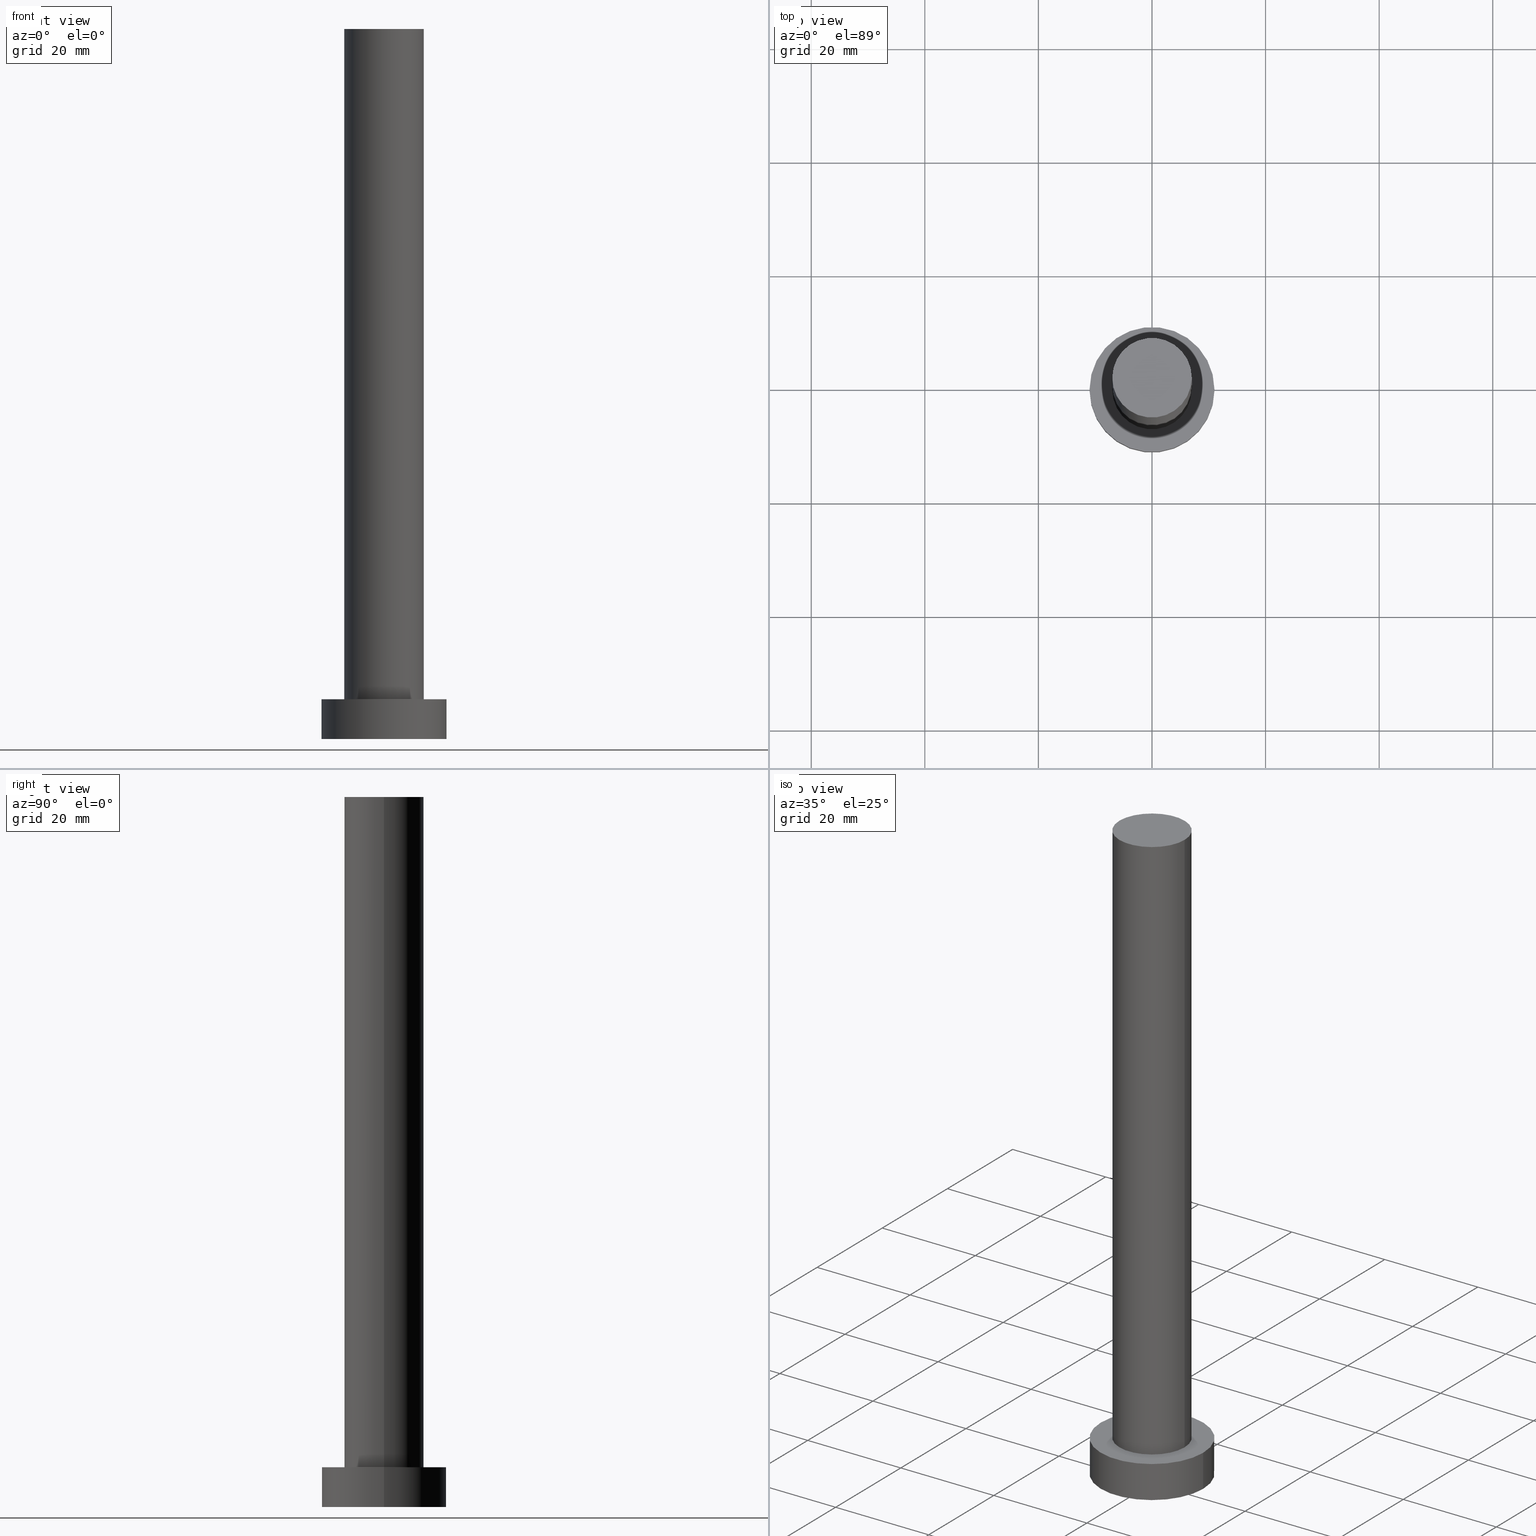
[diagram: canonical four-view strip — front | top / right | iso, engineering-drawing reading convention]
A machine part, canonical four-view strip (front | top / right | iso — engineering-drawing reading convention). The complete STEP part file that produces these views, byte-faithful:
ISO-10303-21;
HEADER;
FILE_DESCRIPTION (( 'STEP AP203' ),
    '1' );
FILE_NAME ('b90e.STEP',
    '2023-02-13T10:16:55',
    ( '' ),
    ( '' ),
    'SwSTEP 2.0',
    'SolidWorks 2019',
    '' );
FILE_SCHEMA (( 'CONFIG_CONTROL_DESIGN' ));
ENDSEC;

DATA;
#1 = DIRECTION ( 'NONE',  ( -0.000000000000000000, -0.000000000000000000, -1.000000000000000000 ) ) ;
#2 = APPROVAL_DATE_TIME ( #107, #102 ) ;
#3 = LOCAL_TIME ( 11, 16, 55.00000000000000000, #35 ) ;
#4 = CARTESIAN_POINT ( 'NONE',  ( 0.000000000000000000, 0.000000000000000000, 125.0000000000000000 ) ) ;
#5 = EDGE_LOOP ( 'NONE', ( #142, #148 ) ) ;
#6 = DIRECTION ( 'NONE',  ( 0.000000000000000000, 0.000000000000000000, 1.000000000000000000 ) ) ;
#7 = AXIS2_PLACEMENT_3D ( 'NONE', #230, #246, #52 ) ;
#8 = PRODUCT_RELATED_PRODUCT_CATEGORY ( 'detail', '', ( #132 ) ) ;
#9 = DIRECTION ( 'NONE',  ( 0.000000000000000000, 0.000000000000000000, 1.000000000000000000 ) ) ;
#10 = AXIS2_PLACEMENT_3D ( 'NONE', #200, #224, #27 ) ;
#11 = CARTESIAN_POINT ( 'NONE',  ( 0.000000000000000000, 0.000000000000000000, 125.0000000000000000 ) ) ;
#12 = DIRECTION ( 'NONE',  ( -0.000000000000000000, -0.000000000000000000, -1.000000000000000000 ) ) ;
#13 = CARTESIAN_POINT ( 'NONE',  ( -7.000000000000000888, 0.000000000000000000, 7.000000000000000000 ) ) ;
#14 = DIRECTION ( 'NONE',  ( 0.000000000000000000, 0.000000000000000000, 1.000000000000000000 ) ) ;
#15 = COORDINATED_UNIVERSAL_TIME_OFFSET ( 1, 0, .AHEAD. ) ;
#16 = LINE ( 'NONE', #70, #198 ) ;
#17 = MANIFOLD_SOLID_BREP ( 'P�idat vysunut�m3', #24 ) ;
#18 = APPLICATION_CONTEXT ( 'configuration controlled 3d designs of mechanical parts and assemblies' ) ;
#19 = DIRECTION ( 'NONE',  ( 1.000000000000000000, 0.000000000000000000, 0.000000000000000000 ) ) ;
#20 = AXIS2_PLACEMENT_3D ( 'NONE', #185, #122, #66 ) ;
#21 = CARTESIAN_POINT ( 'NONE',  ( 0.000000000000000000, 0.000000000000000000, 7.000000000000000000 ) ) ;
#22 = CALENDAR_DATE ( 2023, 13, 2 ) ;
#23 = DIRECTION ( 'NONE',  ( 0.000000000000000000, 0.000000000000000000, 1.000000000000000000 ) ) ;
#24 = CLOSED_SHELL ( 'NONE', ( #116, #45, #187, #222, #157, #134, #154 ) ) ;
#25 = LOCAL_TIME ( 11, 16, 55.00000000000000000, #129 ) ;
#26 =( NAMED_UNIT ( * ) PLANE_ANGLE_UNIT ( ) SI_UNIT ( $, .RADIAN. ) );
#27 = DIRECTION ( 'NONE',  ( 1.000000000000000000, 0.000000000000000000, 0.000000000000000000 ) ) ;
#28 = AXIS2_PLACEMENT_3D ( 'NONE', #87, #189, #214 ) ;
#29 = CARTESIAN_POINT ( 'NONE',  ( -11.00000000000000000, 0.000000000000000000, 7.000000000000000000 ) ) ;
#30 = ORIENTED_EDGE ( 'NONE', *, *, #205, .F. ) ;
#31 = CIRCLE ( 'NONE', #182, 11.00000000000000000 ) ;
#32 = DIRECTION ( 'NONE',  ( 0.000000000000000000, 0.000000000000000000, 1.000000000000000000 ) ) ;
#33 = CYLINDRICAL_SURFACE ( 'NONE', #195, 11.00000000000000000 ) ;
#34 = PLANE ( 'NONE',  #82 ) ;
#35 = COORDINATED_UNIVERSAL_TIME_OFFSET ( 1, 0, .AHEAD. ) ;
#36 = ORIENTED_EDGE ( 'NONE', *, *, #184, .T. ) ;
#37 = DATE_AND_TIME ( #22, #158 ) ;
#38 = SECURITY_CLASSIFICATION_LEVEL ( 'unclassified' ) ;
#39 = SHAPE_DEFINITION_REPRESENTATION ( #236, #254 ) ;
#40 = EDGE_CURVE ( 'NONE', #120, #105, #238, .T. ) ;
#41 = CARTESIAN_POINT ( 'NONE',  ( 7.000000000000000888, 8.572527594031474176E-16, 125.0000000000000000 ) ) ;
#42 = CIRCLE ( 'NONE', #190, 11.00000000000000000 ) ;
#43 = SECURITY_CLASSIFICATION ( '', '', #38 ) ;
#44 = CARTESIAN_POINT ( 'NONE',  ( -7.000000000000000888, 0.000000000000000000, 125.0000000000000000 ) ) ;
#45 = ADVANCED_FACE ( 'NONE', ( #108 ), #33, .T. ) ;
#46 = DIRECTION ( 'NONE',  ( 1.000000000000000000, 0.000000000000000000, 0.000000000000000000 ) ) ;
#47 = EDGE_CURVE ( 'NONE', #212, #120, #16, .T. ) ;
#48 = DIRECTION ( 'NONE',  ( -0.000000000000000000, -0.000000000000000000, -1.000000000000000000 ) ) ;
#49 = CARTESIAN_POINT ( 'NONE',  ( 0.000000000000000000, 0.000000000000000000, 0.000000000000000000 ) ) ;
#50 = CYLINDRICAL_SURFACE ( 'NONE', #28, 7.000000000000000888 ) ;
#51 = APPROVAL ( #255, 'NEUR�EN�' ) ;
#52 = DIRECTION ( 'NONE',  ( 1.000000000000000000, 0.000000000000000000, 0.000000000000000000 ) ) ;
#53 = DIRECTION ( 'NONE',  ( 1.000000000000000000, 0.000000000000000000, -0.000000000000000000 ) ) ;
#54 = APPROVAL_STATUS ( 'not_yet_approved' ) ;
#55 = COORDINATED_UNIVERSAL_TIME_OFFSET ( 1, 0, .AHEAD. ) ;
#56 = CALENDAR_DATE ( 2023, 13, 2 ) ;
#57 = ORGANIZATION ( 'NEUR�EN�', 'NEUR�EN�', '' ) ;
#58 = ORIENTED_EDGE ( 'NONE', *, *, #47, .T. ) ;
#59 = CC_DESIGN_PERSON_AND_ORGANIZATION_ASSIGNMENT ( #173, #192, ( #180 ) ) ;
#60 = ORIENTED_EDGE ( 'NONE', *, *, #77, .T. ) ;
#61 = LOCAL_TIME ( 11, 16, 55.00000000000000000, #251 ) ;
#62 = MECHANICAL_CONTEXT ( 'NONE', #18, 'mechanical' ) ;
#63 = VECTOR ( 'NONE', #145, 1000.000000000000000 ) ;
#64 = ORIENTED_EDGE ( 'NONE', *, *, #40, .F. ) ;
#65 = FACE_OUTER_BOUND ( 'NONE', #80, .T. ) ;
#66 = DIRECTION ( 'NONE',  ( 1.000000000000000000, 0.000000000000000000, 0.000000000000000000 ) ) ;
#67 = APPROVAL ( #54, 'NEUR�EN�' ) ;
#68 = AXIS2_PLACEMENT_3D ( 'NONE', #4, #161, #241 ) ;
#69 = ORIENTED_EDGE ( 'NONE', *, *, #71, .F. ) ;
#70 = CARTESIAN_POINT ( 'NONE',  ( -7.000000000000000888, 0.000000000000000000, 125.0000000000000000 ) ) ;
#71 = EDGE_CURVE ( 'NONE', #208, #226, #247, .T. ) ;
#72 = APPROVAL_ROLE ( '' ) ;
#73 = CALENDAR_DATE ( 2023, 13, 2 ) ;
#74 = DIRECTION ( 'NONE',  ( 0.000000000000000000, 0.000000000000000000, 1.000000000000000000 ) ) ;
#75 = PERSON_AND_ORGANIZATION_ROLE ( 'creator' ) ;
#76 = CIRCLE ( 'NONE', #7, 7.000000000000000888 ) ;
#77 = EDGE_CURVE ( 'NONE', #212, #84, #76, .T. ) ;
#78 = FACE_OUTER_BOUND ( 'NONE', #5, .T. ) ;
#79 = ORIENTED_EDGE ( 'NONE', *, *, #205, .T. ) ;
#80 = EDGE_LOOP ( 'NONE', ( #144, #207, #58, #126 ) ) ;
#81 = EDGE_LOOP ( 'NONE', ( #60, #183 ) ) ;
#82 = AXIS2_PLACEMENT_3D ( 'NONE', #90, #32, #53 ) ;
#83 = AXIS2_PLACEMENT_3D ( 'NONE', #11, #146, #229 ) ;
#84 = VERTEX_POINT ( 'NONE', #168 ) ;
#85 = CC_DESIGN_DATE_AND_TIME_ASSIGNMENT ( #93, #127, ( #180 ) ) ;
#86 = EDGE_LOOP ( 'NONE', ( #64, #30 ) ) ;
#87 = CARTESIAN_POINT ( 'NONE',  ( 0.000000000000000000, 0.000000000000000000, 125.0000000000000000 ) ) ;
#88 = PERSON ( 'NEUR�EN�', 'NEUR�EN�', 'NEUR�EN�', ('NEUR�EN�'), ('NEUR�EN�'), ('NEUR�EN�') ) ;
#89 = CC_DESIGN_SECURITY_CLASSIFICATION ( #43, ( #206 ) ) ;
#90 = CARTESIAN_POINT ( 'NONE',  ( 0.000000000000000000, 0.000000000000000000, 125.0000000000000000 ) ) ;
#91 = CC_DESIGN_PERSON_AND_ORGANIZATION_ASSIGNMENT ( #125, #213, ( #132 ) ) ;
#92 = DATE_AND_TIME ( #149, #25 ) ;
#93 = DATE_AND_TIME ( #155, #61 ) ;
#94 = CC_DESIGN_DATE_AND_TIME_ASSIGNMENT ( #92, #175, ( #43 ) ) ;
#95 = DIRECTION ( 'NONE',  ( 1.000000000000000000, 0.000000000000000000, -0.000000000000000000 ) ) ;
#96 = PLANE ( 'NONE',  #225 ) ;
#97 =( NAMED_UNIT ( * ) SI_UNIT ( $, .STERADIAN. ) SOLID_ANGLE_UNIT ( ) );
#98 = EDGE_LOOP ( 'NONE', ( #118, #139, #79, #99 ) ) ;
#99 = ORIENTED_EDGE ( 'NONE', *, *, #47, .F. ) ;
#100 = AXIS2_PLACEMENT_3D ( 'NONE', #21, #1, #176 ) ;
#101 = ORIENTED_EDGE ( 'NONE', *, *, #140, .T. ) ;
#102 = APPROVAL ( #114, 'NEUR�EN�' ) ;
#103 = CC_DESIGN_APPROVAL ( #51, ( #43 ) ) ;
#104 = DIRECTION ( 'NONE',  ( -1.000000000000000000, 0.000000000000000000, 0.000000000000000000 ) ) ;
#105 = VERTEX_POINT ( 'NONE', #147 ) ;
#106 = AXIS2_PLACEMENT_3D ( 'NONE', #141, #223, #46 ) ;
#107 = DATE_AND_TIME ( #73, #3 ) ;
#108 = FACE_OUTER_BOUND ( 'NONE', #228, .T. ) ;
#109 = PERSON_AND_ORGANIZATION_ROLE ( 'design_supplier' ) ;
#110 = APPROVAL_ROLE ( '' ) ;
#111 = CARTESIAN_POINT ( 'NONE',  ( 0.000000000000000000, 0.000000000000000000, 0.000000000000000000 ) ) ;
#112 = EDGE_CURVE ( 'NONE', #208, #201, #166, .T. ) ;
#113 = FACE_OUTER_BOUND ( 'NONE', #136, .T. ) ;
#114 = APPROVAL_STATUS ( 'not_yet_approved' ) ;
#115 = CARTESIAN_POINT ( 'NONE',  ( 0.000000000000000000, 0.000000000000000000, 0.000000000000000000 ) ) ;
#116 = ADVANCED_FACE ( 'NONE', ( #172 ), #209, .T. ) ;
#117 = CIRCLE ( 'NONE', #10, 7.000000000000000888 ) ;
#118 = ORIENTED_EDGE ( 'NONE', *, *, #253, .F. ) ;
#119 = LOCAL_TIME ( 11, 16, 55.00000000000000000, #55 ) ;
#120 = VERTEX_POINT ( 'NONE', #13 ) ;
#121 = CIRCLE ( 'NONE', #219, 11.00000000000000000 ) ;
#122 = DIRECTION ( 'NONE',  ( 0.000000000000000000, 0.000000000000000000, 1.000000000000000000 ) ) ;
#123 = FACE_OUTER_BOUND ( 'NONE', #81, .T. ) ;
#124 = DIRECTION ( 'NONE',  ( 0.000000000000000000, 0.000000000000000000, 1.000000000000000000 ) ) ;
#125 = PERSON_AND_ORGANIZATION ( #88, #57 ) ;
#126 = ORIENTED_EDGE ( 'NONE', *, *, #40, .T. ) ;
#127 = DATE_TIME_ROLE ( 'creation_date' ) ;
#128 = ORIENTED_EDGE ( 'NONE', *, *, #184, .F. ) ;
#129 = COORDINATED_UNIVERSAL_TIME_OFFSET ( 1, 0, .AHEAD. ) ;
#130 = PERSON_AND_ORGANIZATION ( #88, #57 ) ;
#131 = CARTESIAN_POINT ( 'NONE',  ( 11.00000000000000000, 1.347111479062088405E-15, 7.000000000000000000 ) ) ;
#132 = PRODUCT ( 'b90e', 'b90e', '', ( #62 ) ) ;
#133 =( GEOMETRIC_REPRESENTATION_CONTEXT ( 3 ) GLOBAL_UNCERTAINTY_ASSIGNED_CONTEXT ( ( #159 ) ) GLOBAL_UNIT_ASSIGNED_CONTEXT ( ( #220, #26, #97 ) ) REPRESENTATION_CONTEXT ( 'NONE', 'WORKASPACE' ) );
#134 = ADVANCED_FACE ( 'NONE', ( #65 ), #50, .T. ) ;
#135 = FACE_OUTER_BOUND ( 'NONE', #227, .T. ) ;
#136 = EDGE_LOOP ( 'NONE', ( #162, #249, #188, #101 ) ) ;
#137 = APPLICATION_CONTEXT ( 'configuration controlled 3d designs of mechanical parts and assemblies' ) ;
#138 = CC_DESIGN_APPROVAL ( #102, ( #180 ) ) ;
#139 = ORIENTED_EDGE ( 'NONE', *, *, #202, .T. ) ;
#140 = EDGE_CURVE ( 'NONE', #226, #215, #31, .T. ) ;
#141 = CARTESIAN_POINT ( 'NONE',  ( 0.000000000000000000, 0.000000000000000000, 0.000000000000000000 ) ) ;
#142 = ORIENTED_EDGE ( 'NONE', *, *, #112, .T. ) ;
#143 = CC_DESIGN_APPROVAL ( #67, ( #206 ) ) ;
#144 = ORIENTED_EDGE ( 'NONE', *, *, #202, .F. ) ;
#145 = DIRECTION ( 'NONE',  ( -0.000000000000000000, -0.000000000000000000, -1.000000000000000000 ) ) ;
#146 = DIRECTION ( 'NONE',  ( -0.000000000000000000, -0.000000000000000000, -1.000000000000000000 ) ) ;
#147 = CARTESIAN_POINT ( 'NONE',  ( 7.000000000000000888, 8.572527594031474176E-16, 7.000000000000000000 ) ) ;
#148 = ORIENTED_EDGE ( 'NONE', *, *, #244, .T. ) ;
#149 = CALENDAR_DATE ( 2023, 13, 2 ) ;
#150 = DIRECTION ( 'NONE',  ( 1.000000000000000000, 0.000000000000000000, -0.000000000000000000 ) ) ;
#151 = CIRCLE ( 'NONE', #68, 7.000000000000000888 ) ;
#152 = PERSON_AND_ORGANIZATION_ROLE ( 'classification_officer' ) ;
#153 = LINE ( 'NONE', #131, #174 ) ;
#154 = ADVANCED_FACE ( 'NONE', ( #123 ), #34, .T. ) ;
#155 = CALENDAR_DATE ( 2023, 13, 2 ) ;
#156 = CARTESIAN_POINT ( 'NONE',  ( 11.00000000000000000, 1.347111479062088405E-15, 7.000000000000000000 ) ) ;
#157 = ADVANCED_FACE ( 'NONE', ( #135 ), #218, .F. ) ;
#158 = LOCAL_TIME ( 11, 16, 55.00000000000000000, #15 ) ;
#159 = UNCERTAINTY_MEASURE_WITH_UNIT (LENGTH_MEASURE( 1.000000000000000082E-05 ), #220, 'distance_accuracy_value', 'NONE');
#160 = DIRECTION ( 'NONE',  ( -0.000000000000000000, -0.000000000000000000, -1.000000000000000000 ) ) ;
#161 = DIRECTION ( 'NONE',  ( 0.000000000000000000, 0.000000000000000000, 1.000000000000000000 ) ) ;
#162 = ORIENTED_EDGE ( 'NONE', *, *, #164, .F. ) ;
#163 = VECTOR ( 'NONE', #160, 1000.000000000000000 ) ;
#164 = EDGE_CURVE ( 'NONE', #201, #215, #153, .T. ) ;
#165 = CARTESIAN_POINT ( 'NONE',  ( 0.000000000000000000, 0.000000000000000000, 7.000000000000000000 ) ) ;
#166 = CIRCLE ( 'NONE', #20, 11.00000000000000000 ) ;
#167 = DIRECTION ( 'NONE',  ( 1.000000000000000000, 0.000000000000000000, 0.000000000000000000 ) ) ;
#168 = CARTESIAN_POINT ( 'NONE',  ( 7.000000000000000888, 8.572527594031474176E-16, 125.0000000000000000 ) ) ;
#169 = DIRECTION ( 'NONE',  ( 1.000000000000000000, 0.000000000000000000, 0.000000000000000000 ) ) ;
#170 = CC_DESIGN_PERSON_AND_ORGANIZATION_ASSIGNMENT ( #216, #75, ( #206 ) ) ;
#171 = APPLICATION_PROTOCOL_DEFINITION ( 'international standard', 'config_control_design', 1994, #137 ) ;
#172 = FACE_OUTER_BOUND ( 'NONE', #98, .T. ) ;
#173 = PERSON_AND_ORGANIZATION ( #88, #57 ) ;
#174 = VECTOR ( 'NONE', #235, 1000.000000000000000 ) ;
#175 = DATE_TIME_ROLE ( 'classification_date' ) ;
#176 = DIRECTION ( 'NONE',  ( -1.000000000000000000, 0.000000000000000000, 0.000000000000000000 ) ) ;
#177 = DESIGN_CONTEXT ( 'detailed design', #137, 'design' ) ;
#178 = CARTESIAN_POINT ( 'NONE',  ( 0.000000000000000000, 0.000000000000000000, 7.000000000000000000 ) ) ;
#179 = ORIENTED_EDGE ( 'NONE', *, *, #244, .F. ) ;
#180 = PRODUCT_DEFINITION ( 'NEZN�M�', '', #206, #177 ) ;
#181 = CARTESIAN_POINT ( 'NONE',  ( 0.000000000000000000, 0.000000000000000000, 7.000000000000000000 ) ) ;
#182 = AXIS2_PLACEMENT_3D ( 'NONE', #49, #14, #169 ) ;
#183 = ORIENTED_EDGE ( 'NONE', *, *, #253, .T. ) ;
#184 = EDGE_CURVE ( 'NONE', #215, #226, #42, .T. ) ;
#185 = CARTESIAN_POINT ( 'NONE',  ( 0.000000000000000000, 0.000000000000000000, 7.000000000000000000 ) ) ;
#186 = ORIENTED_EDGE ( 'NONE', *, *, #164, .T. ) ;
#187 = ADVANCED_FACE ( 'NONE', ( #113 ), #196, .T. ) ;
#188 = ORIENTED_EDGE ( 'NONE', *, *, #71, .T. ) ;
#189 = DIRECTION ( 'NONE',  ( -0.000000000000000000, -0.000000000000000000, -1.000000000000000000 ) ) ;
#190 = AXIS2_PLACEMENT_3D ( 'NONE', #111, #23, #19 ) ;
#191 = APPROVAL_PERSON_ORGANIZATION ( #250, #51, #110 ) ;
#192 = PERSON_AND_ORGANIZATION_ROLE ( 'creator' ) ;
#193 = CARTESIAN_POINT ( 'NONE',  ( 0.000000000000000000, 0.000000000000000000, 7.000000000000000000 ) ) ;
#194 = DATE_AND_TIME ( #56, #119 ) ;
#195 = AXIS2_PLACEMENT_3D ( 'NONE', #193, #48, #104 ) ;
#196 = CYLINDRICAL_SURFACE ( 'NONE', #100, 11.00000000000000000 ) ;
#197 = APPROVAL_ROLE ( '' ) ;
#198 = VECTOR ( 'NONE', #12, 1000.000000000000000 ) ;
#199 = AXIS2_PLACEMENT_3D ( 'NONE', #115, #74, #150 ) ;
#200 = CARTESIAN_POINT ( 'NONE',  ( 0.000000000000000000, 0.000000000000000000, 7.000000000000000000 ) ) ;
#201 = VERTEX_POINT ( 'NONE', #156 ) ;
#202 = EDGE_CURVE ( 'NONE', #84, #105, #237, .T. ) ;
#203 = CARTESIAN_POINT ( 'NONE',  ( -11.00000000000000000, 0.000000000000000000, 0.000000000000000000 ) ) ;
#204 = APPLICATION_PROTOCOL_DEFINITION ( 'international standard', 'config_control_design', 1994, #18 ) ;
#205 = EDGE_CURVE ( 'NONE', #105, #120, #117, .T. ) ;
#206 = PRODUCT_DEFINITION_FORMATION_WITH_SPECIFIED_SOURCE ( 'LIBOVOLN�', '', #132, .NOT_KNOWN. ) ;
#207 = ORIENTED_EDGE ( 'NONE', *, *, #77, .F. ) ;
#208 = VERTEX_POINT ( 'NONE', #29 ) ;
#209 = CYLINDRICAL_SURFACE ( 'NONE', #83, 7.000000000000000888 ) ;
#210 = APPROVAL_PERSON_ORGANIZATION ( #130, #67, #197 ) ;
#211 = CC_DESIGN_PERSON_AND_ORGANIZATION_ASSIGNMENT ( #239, #152, ( #43 ) ) ;
#212 = VERTEX_POINT ( 'NONE', #44 ) ;
#213 = PERSON_AND_ORGANIZATION_ROLE ( 'design_owner' ) ;
#214 = DIRECTION ( 'NONE',  ( -1.000000000000000000, 0.000000000000000000, 0.000000000000000000 ) ) ;
#215 = VERTEX_POINT ( 'NONE', #221 ) ;
#216 = PERSON_AND_ORGANIZATION ( #88, #57 ) ;
#217 = APPROVAL_DATE_TIME ( #37, #67 ) ;
#218 = PLANE ( 'NONE',  #199 ) ;
#219 = AXIS2_PLACEMENT_3D ( 'NONE', #178, #6, #243 ) ;
#220 =( LENGTH_UNIT ( ) NAMED_UNIT ( * ) SI_UNIT ( .MILLI., .METRE. ) );
#221 = CARTESIAN_POINT ( 'NONE',  ( 11.00000000000000000, 1.347111479062088405E-15, 0.000000000000000000 ) ) ;
#222 = ADVANCED_FACE ( 'NONE', ( #240, #78 ), #96, .T. ) ;
#223 = DIRECTION ( 'NONE',  ( 0.000000000000000000, 0.000000000000000000, 1.000000000000000000 ) ) ;
#224 = DIRECTION ( 'NONE',  ( 0.000000000000000000, 0.000000000000000000, 1.000000000000000000 ) ) ;
#225 = AXIS2_PLACEMENT_3D ( 'NONE', #181, #9, #95 ) ;
#226 = VERTEX_POINT ( 'NONE', #203 ) ;
#227 = EDGE_LOOP ( 'NONE', ( #232, #128 ) ) ;
#228 = EDGE_LOOP ( 'NONE', ( #179, #186, #36, #69 ) ) ;
#229 = DIRECTION ( 'NONE',  ( -1.000000000000000000, 0.000000000000000000, 0.000000000000000000 ) ) ;
#230 = CARTESIAN_POINT ( 'NONE',  ( 0.000000000000000000, 0.000000000000000000, 125.0000000000000000 ) ) ;
#231 = CC_DESIGN_PERSON_AND_ORGANIZATION_ASSIGNMENT ( #234, #109, ( #206 ) ) ;
#232 = ORIENTED_EDGE ( 'NONE', *, *, #140, .F. ) ;
#233 = APPROVAL_DATE_TIME ( #194, #51 ) ;
#234 = PERSON_AND_ORGANIZATION ( #88, #57 ) ;
#235 = DIRECTION ( 'NONE',  ( -0.000000000000000000, -0.000000000000000000, -1.000000000000000000 ) ) ;
#236 = PRODUCT_DEFINITION_SHAPE ( 'NONE', 'NONE',  #180 ) ;
#237 = LINE ( 'NONE', #41, #163 ) ;
#238 = CIRCLE ( 'NONE', #242, 7.000000000000000888 ) ;
#239 = PERSON_AND_ORGANIZATION ( #88, #57 ) ;
#240 = FACE_BOUND ( 'NONE', #86, .T. ) ;
#241 = DIRECTION ( 'NONE',  ( 1.000000000000000000, 0.000000000000000000, 0.000000000000000000 ) ) ;
#242 = AXIS2_PLACEMENT_3D ( 'NONE', #165, #124, #167 ) ;
#243 = DIRECTION ( 'NONE',  ( 1.000000000000000000, 0.000000000000000000, 0.000000000000000000 ) ) ;
#244 = EDGE_CURVE ( 'NONE', #201, #208, #121, .T. ) ;
#245 = CARTESIAN_POINT ( 'NONE',  ( -11.00000000000000000, 0.000000000000000000, 7.000000000000000000 ) ) ;
#246 = DIRECTION ( 'NONE',  ( 0.000000000000000000, 0.000000000000000000, 1.000000000000000000 ) ) ;
#247 = LINE ( 'NONE', #245, #63 ) ;
#248 = PERSON_AND_ORGANIZATION ( #88, #57 ) ;
#249 = ORIENTED_EDGE ( 'NONE', *, *, #112, .F. ) ;
#250 = PERSON_AND_ORGANIZATION ( #88, #57 ) ;
#251 = COORDINATED_UNIVERSAL_TIME_OFFSET ( 1, 0, .AHEAD. ) ;
#252 = APPROVAL_PERSON_ORGANIZATION ( #248, #102, #72 ) ;
#253 = EDGE_CURVE ( 'NONE', #84, #212, #151, .T. ) ;
#254 = ADVANCED_BREP_SHAPE_REPRESENTATION ( 'b90e', ( #17, #106 ), #133 ) ;
#255 = APPROVAL_STATUS ( 'not_yet_approved' ) ;
ENDSEC;
END-ISO-10303-21;
